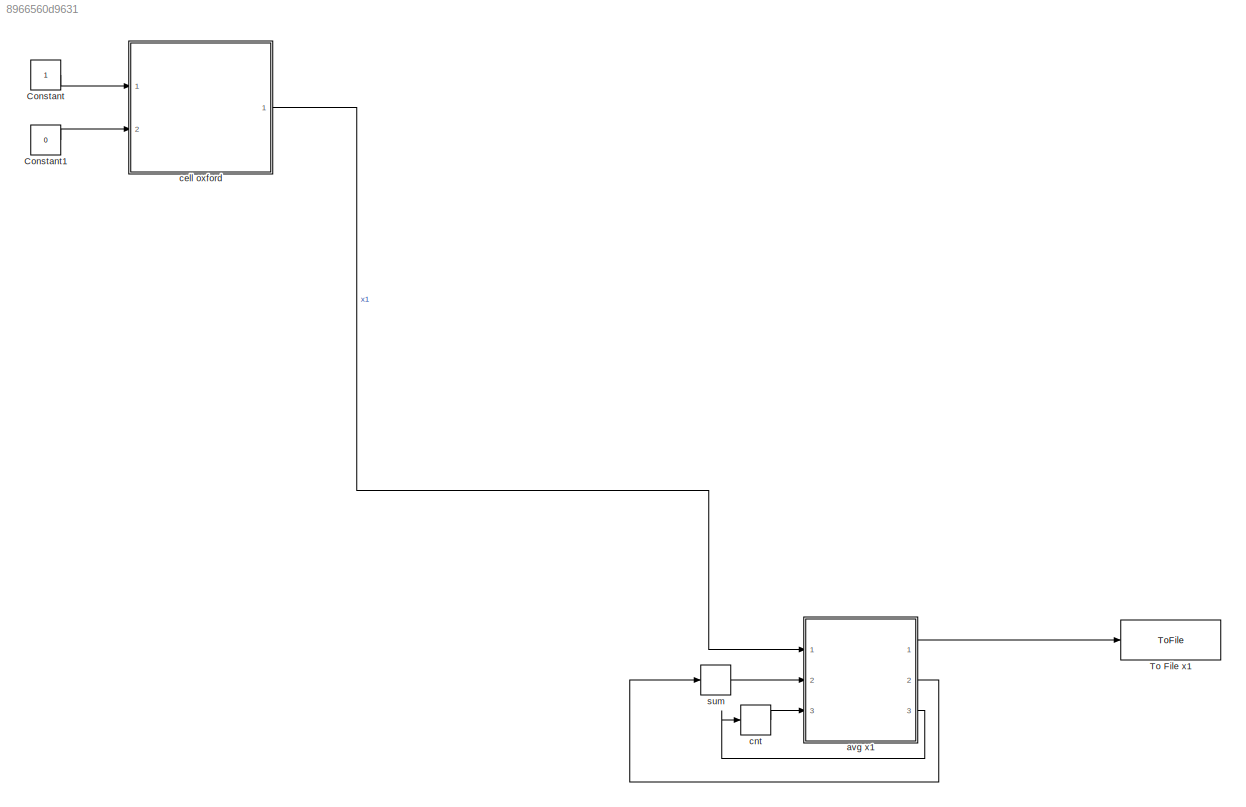
MODEL slx_8966560d9631
KIND model
BLOCK [Constant] Constant
BLOCK [Constant] Constant1
  Value = 0
BLOCK [ToFile] To File x1
  Decimation = 10000000
  Filename = x1Output.mat
  Ports = [1]
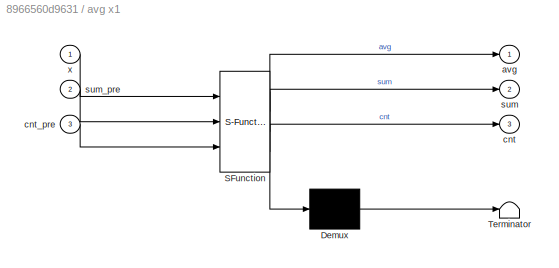
BLOCK [SubSystem] avg x1
  ErrorFcn = Stateflow.Translate.translate
  PermitHierarchicalResolution = ExplicitOnly
  Ports = [3, 3]
  RequestExecContextInheritance = off
  SFBlockType = MATLAB Function
  TreatAsAtomicUnit = on
BLOCK [Demux] avg x1/ Demux 
  Outputs = 1
  Ports = [1, 1]
BLOCK [S-Function] avg x1/ SFunction 
  EnableBusSupport = on
  FunctionName = sf_sfun
  PortCounts = [3 4]
  Ports = [3, 4]
  Tag = Stateflow S-Function cell1D 4
BLOCK [Terminator] avg x1/ Terminator 
BLOCK [Outport] avg x1/avg
  IconDisplay = Port number
BLOCK [Outport] avg x1/cnt
  IconDisplay = Port number
  Port = 3
BLOCK [Inport] avg x1/cnt_pre
  IconDisplay = Port number
  Port = 3
BLOCK [Outport] avg x1/sum
  IconDisplay = Port number
  Port = 2
BLOCK [Inport] avg x1/sum_pre
  IconDisplay = Port number
  Port = 2
BLOCK [Inport] avg x1/x
  IconDisplay = Port number
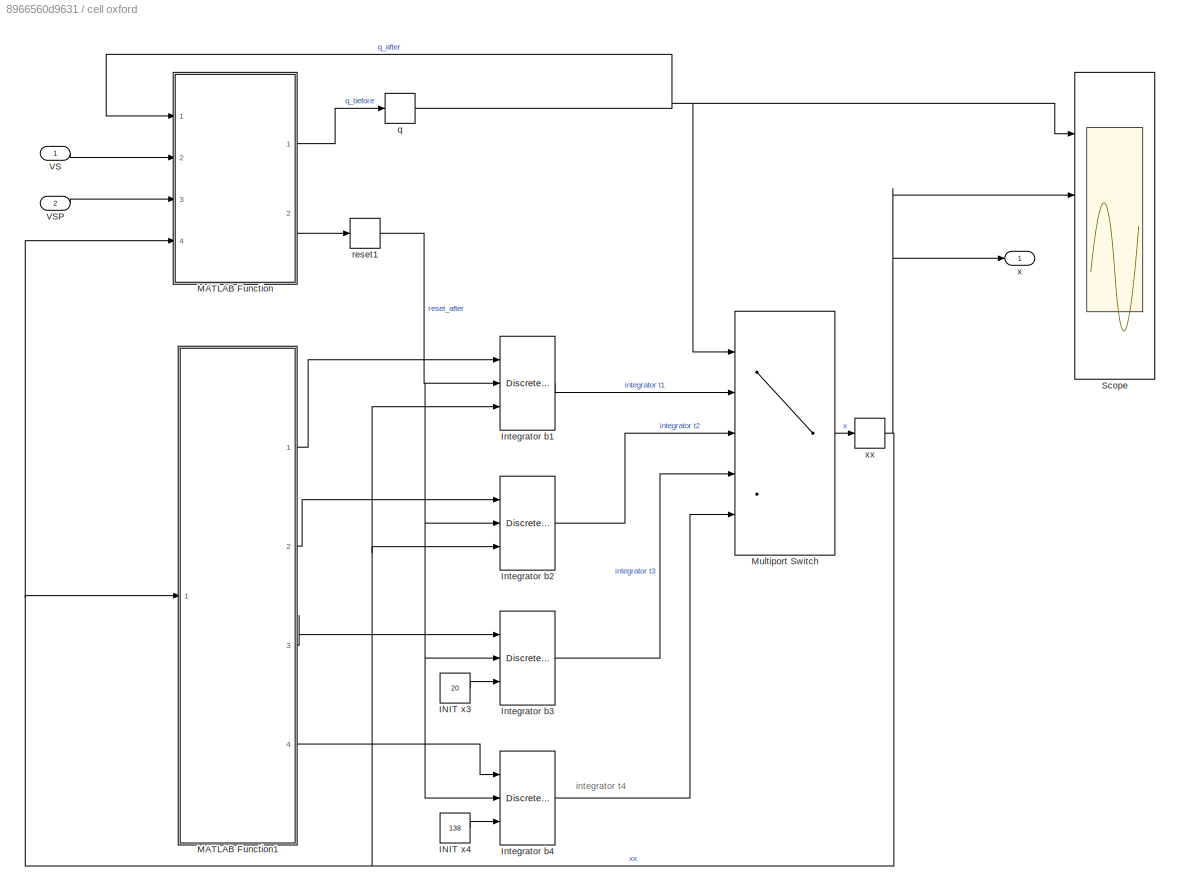
BLOCK [SubSystem] cell oxford
  Ports = [2, 1]
  RequestExecContextInheritance = off
BLOCK [Constant] cell oxford/INIT x3
  Value = 20
BLOCK [Constant] cell oxford/INIT x4
  Value = 138
BLOCK [DiscreteIntegrator] cell oxford/Integrator b1
  ExternalReset = either
  InitialCondition = 510
  InitialConditionSetting = State (most efficient)
  InitialConditionSource = external
  Ports = [3, 1]
  SampleTime = -1
BLOCK [DiscreteIntegrator] cell oxford/Integrator b2
  ExternalReset = either
  InitialCondition = 510
  InitialConditionSetting = State (most efficient)
  InitialConditionSource = external
  Ports = [3, 1]
  SampleTime = -1
BLOCK [DiscreteIntegrator] cell oxford/Integrator b3
  ExternalReset = either
  InitialCondition = 510
  InitialConditionSetting = State (most efficient)
  InitialConditionSource = external
  Ports = [3, 1]
  SampleTime = -1
BLOCK [DiscreteIntegrator] cell oxford/Integrator b4
  ExternalReset = either
  InitialCondition = 510
  InitialConditionSetting = State (most efficient)
  InitialConditionSource = external
  Ports = [3, 1]
  SampleTime = -1
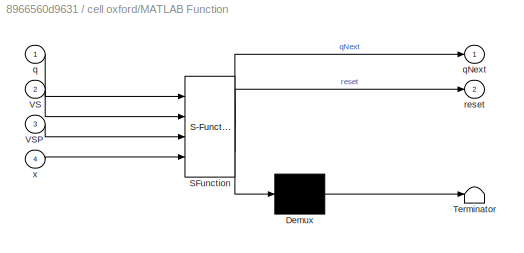
BLOCK [SubSystem] cell oxford/MATLAB Function
  ErrorFcn = Stateflow.Translate.translate
  PermitHierarchicalResolution = ExplicitOnly
  Ports = [4, 2]
  Priority = 1
  RequestExecContextInheritance = off
  SFBlockType = MATLAB Function
  TreatAsAtomicUnit = on
BLOCK [Demux] cell oxford/MATLAB Function/ Demux 
  Outputs = 1
  Ports = [1, 1]
BLOCK [S-Function] cell oxford/MATLAB Function/ SFunction 
  EnableBusSupport = on
  FunctionName = sf_sfun
  PortCounts = [4 3]
  Ports = [4, 3]
  Tag = Stateflow S-Function cell1D 1
BLOCK [Terminator] cell oxford/MATLAB Function/ Terminator 
BLOCK [Inport] cell oxford/MATLAB Function/VS
  IconDisplay = Port number
  Port = 2
BLOCK [Inport] cell oxford/MATLAB Function/VSP
  IconDisplay = Port number
  Port = 3
BLOCK [Inport] cell oxford/MATLAB Function/q
  IconDisplay = Port number
BLOCK [Outport] cell oxford/MATLAB Function/qNext
  IconDisplay = Port number
BLOCK [Outport] cell oxford/MATLAB Function/reset
  IconDisplay = Port number
  Port = 2
BLOCK [Inport] cell oxford/MATLAB Function/x
  IconDisplay = Port number
  Port = 4
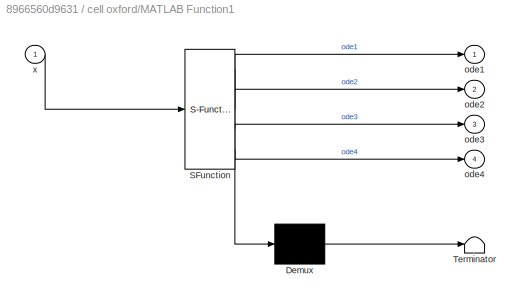
BLOCK [SubSystem] cell oxford/MATLAB Function1
  ErrorFcn = Stateflow.Translate.translate
  PermitHierarchicalResolution = ExplicitOnly
  Ports = [1, 4]
  RequestExecContextInheritance = off
  SFBlockType = MATLAB Function
  TreatAsAtomicUnit = on
BLOCK [Demux] cell oxford/MATLAB Function1/ Demux 
  Outputs = 1
  Ports = [1, 1]
BLOCK [S-Function] cell oxford/MATLAB Function1/ SFunction 
  EnableBusSupport = on
  FunctionName = sf_sfun
  PortCounts = [1 5]
  Ports = [1, 5]
  Tag = Stateflow S-Function cell1D 3
BLOCK [Terminator] cell oxford/MATLAB Function1/ Terminator 
BLOCK [Outport] cell oxford/MATLAB Function1/ode1
  IconDisplay = Port number
BLOCK [Outport] cell oxford/MATLAB Function1/ode2
  IconDisplay = Port number
  Port = 2
BLOCK [Outport] cell oxford/MATLAB Function1/ode3
  IconDisplay = Port number
  Port = 3
BLOCK [Outport] cell oxford/MATLAB Function1/ode4
  IconDisplay = Port number
  Port = 4
BLOCK [Inport] cell oxford/MATLAB Function1/x
  IconDisplay = Port number
BLOCK [MultiPortSwitch] cell oxford/Multiport Switch
  InputSameDT = off
  Inputs = 4
  Ports = [5, 1]
  SaturateOnIntegerOverflow = off
BLOCK [Scope] cell oxford/Scope
  Floating = off
  LegendLocations = 0.75226     0.93279     0.17388    0.020612\n0.79705     0.68978     0.12909    0.020612\n0.72161     0.44677     0.20453    0.020612\n0.72161     0.20484     0.20453    0.020612
  LimitDataPoints = off
  NumInputPorts = 4
  Ports = [4]
  ShowLegends = on
  TickLabels = on
  YMax = 1~1~1~1
  YMin = 0~0~0~0
  ZoomMode = xonly
BLOCK [Inport] cell oxford/VS
  IconDisplay = Port number
BLOCK [Inport] cell oxford/VSP
  IconDisplay = Port number
  Port = 2
BLOCK [Memory] cell oxford/q
  LinearizeMemory = on
  X0 = 1
BLOCK [Memory] cell oxford/reset1
  LinearizeMemory = on
BLOCK [Outport] cell oxford/x
  IconDisplay = Port number
BLOCK [Memory] cell oxford/xx
  LinearizeMemory = on
  X0 = 0.0001
BLOCK [Memory] cnt
BLOCK [Memory] sum
ANNOTATION cell oxford: integrator t4
LINE Constant1:1 -> cell oxford:2
LINE Constant:1 -> cell oxford:1
LINE avg x1:1 -> To File x1:1
LINE avg x1:2 -> sum:1
LINE avg x1:3 -> cnt:1
LINE cell oxford/INIT x3:1 -> cell oxford/Integrator b3:3
LINE cell oxford/INIT x4:1 -> cell oxford/Integrator b4:3
LINE cell oxford/Integrator b1:1 -> cell oxford/Multiport Switch:2
LINE cell oxford/Integrator b2:1 -> cell oxford/Multiport Switch:3
LINE cell oxford/Integrator b3:1 -> cell oxford/Multiport Switch:4
LINE cell oxford/Integrator b4:1 -> cell oxford/Multiport Switch:5
LINE cell oxford/MATLAB Function1:1 -> cell oxford/Integrator b1:1
LINE cell oxford/MATLAB Function1:2 -> cell oxford/Integrator b2:1
LINE cell oxford/MATLAB Function1:3 -> cell oxford/Integrator b3:1
LINE cell oxford/MATLAB Function1:4 -> cell oxford/Integrator b4:1
LINE cell oxford/MATLAB Function:1 -> cell oxford/q:1
LINE cell oxford/MATLAB Function:2 -> cell oxford/reset1:1
LINE cell oxford/Multiport Switch:1 -> cell oxford/xx:1
LINE cell oxford/VS:1 -> cell oxford/MATLAB Function:2
LINE cell oxford/VSP:1 -> cell oxford/MATLAB Function:3
NET cell oxford/q:1 -> cell oxford/MATLAB Function:1, cell oxford/Multiport Switch:1, cell oxford/Scope:1
NET cell oxford/reset1:1 -> cell oxford/Integrator b1:2, cell oxford/Integrator b2:2, cell oxford/Integrator b3:2, cell oxford/Integrator b4:2
NET cell oxford/xx:1 -> cell oxford/Integrator b1:3, cell oxford/Integrator b2:3, cell oxford/MATLAB Function1:1, cell oxford/MATLAB Function:4, cell oxford/Scope:2, cell oxford/x:1
LINE cell oxford:1 -> avg x1:1
LINE cnt:1 -> avg x1:3
LINE sum:1 -> avg x1:2
note: NET lines group one-source signal fan-out (src -> all destinations, sorted); 1:1 wires keep LINE
CHART cell oxford/MATLAB Function states=1 transitions=1
  STATE_LABEL 'eML_blk_kernel()'
  STATE_LABEL 'SCRIPT:\n\n\nfunction [qNext,reset]  = phi(q,  VS, VSP,x)\n%#codegen\n\n\nif q==1 % q=1, cell is resting\n    if VS==0\n        qNext=1;\n        reset=0;\n    elseif VS==1\n        qNext=2;\n        reset=1;\n    else\n        qNext=-1;\n        reset=-1;\n    end;\n    \nelseif q==2 % q=2, cell is stimulated\n    if x<20 && VSP==1\n        qNext=1;\n        reset=1;\n    elseif x< 20 && VSP==0\n        qNext=2;\n       ...<+586ch>'
CHART cell oxford/MATLAB Function1 states=1 transitions=1
  STATE_LABEL 'eML_blk_kernel()'
  STATE_LABEL 'SCRIPT:\nfunction [ode1,ode2,ode3,ode4] = ODEs(x)\n%#codegen\n\node1=-0.1*x;\node2=800;\node3=200*x;\node4=-0.002*x;\n'
CHART avg x1 states=1 transitions=1
  STATE_LABEL 'eML_blk_kernel()'
  STATE_LABEL 'SCRIPT:\nfunction [avg, sum,cnt] = fcn(x,  sum_pre, cnt_pre)\n%#codegen\n\ncnt=cnt_pre+1;\nsum=sum_pre+x;\navg=sum/cnt;\n'
